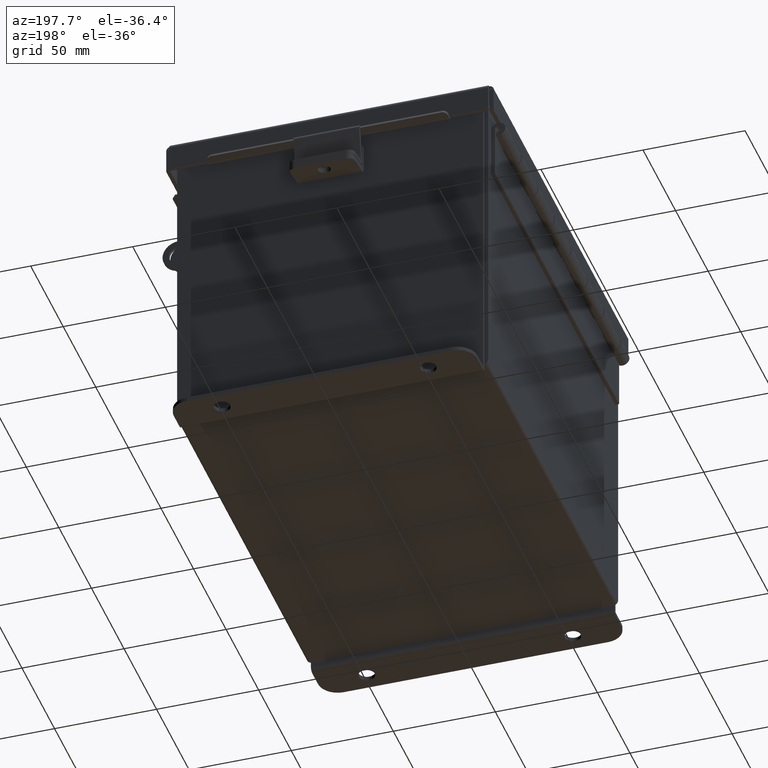
[diagram: clean part render]
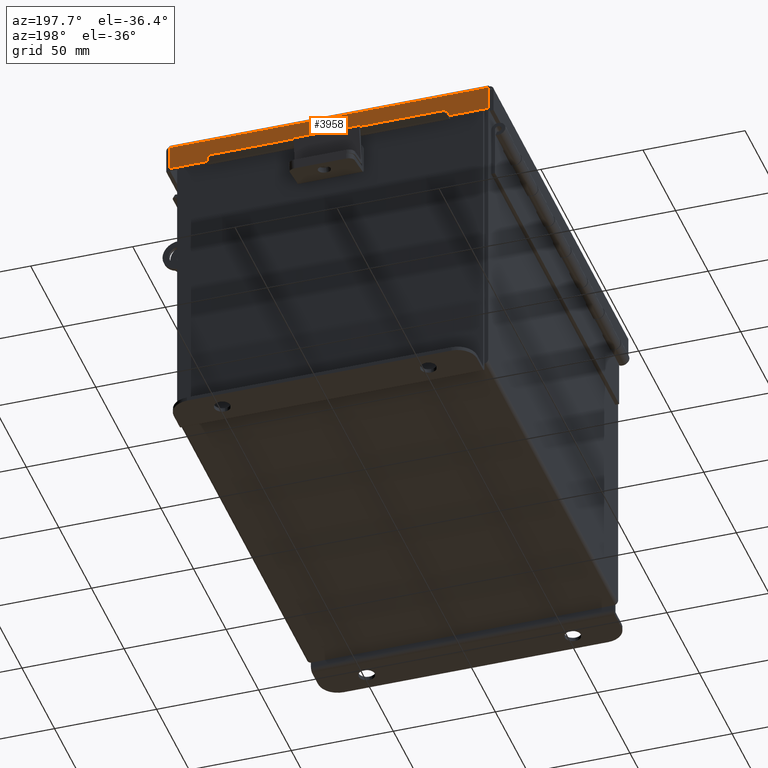
[diagram: same view with one face highlighted and labeled with its STEP entity id]
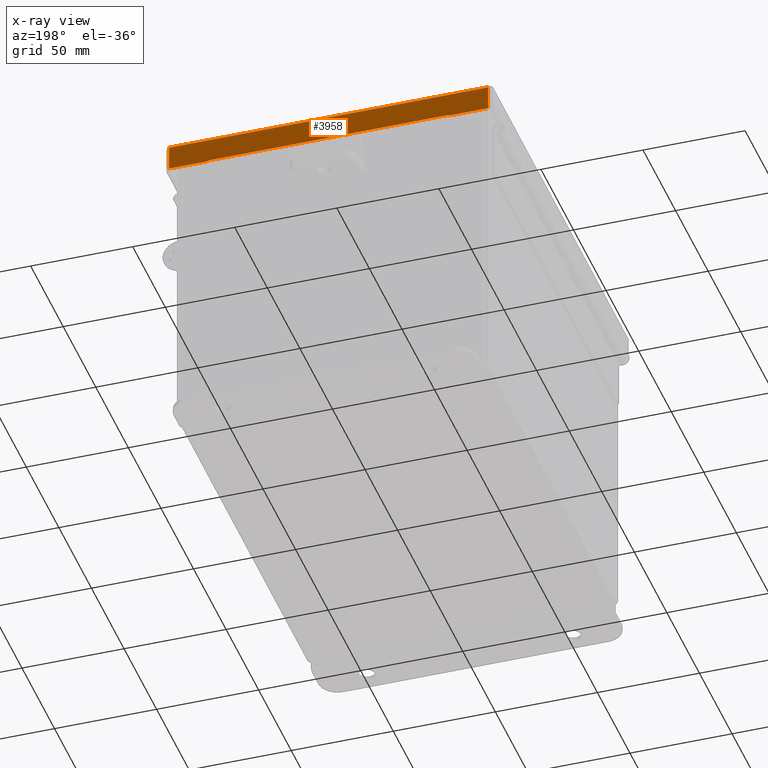
[diagram: x-ray of the same camera — body ghosted, the highlighted face saturated]
A machine part, auxiliary view. The second image highlights one B-rep face of the part: STEP entity #3958.
The next image is the same camera in x-ray: the body ghosted, the highlighted face saturated — about 0% of this face is hidden behind the body in this view.
In plain terms, the highlighted planar face has unit normal (-0, -1, -0).
Its self-contained STEP definition (entity closure, byte-faithful):
#206 = VECTOR ( 'NONE', #11022, 39.37007874015748100 ) ;
#279 = DIRECTION ( 'NONE',  ( 1.000000000000000000, -3.639204975723964700E-032, 1.189815042988946700E-046 ) ) ;
#397 = ORIENTED_EDGE ( 'NONE', *, *, #2754, .F. ) ;
#1220 = ORIENTED_EDGE ( 'NONE', *, *, #1784, .F. ) ;
#1262 = ORIENTED_EDGE ( 'NONE', *, *, #8587, .F. ) ;
#1288 = VERTEX_POINT ( 'NONE', #3587 ) ;
#1474 = VERTEX_POINT ( 'NONE', #7373 ) ;
#1592 = ORIENTED_EDGE ( 'NONE', *, *, #3619, .T. ) ;
#1597 = LINE ( 'NONE', #4617, #13838 ) ;
#1655 = CARTESIAN_POINT ( 'NONE',  ( 3.074478932188136500, 4.156250000000001800, -2.512649847650985800E-016 ) ) ;
#1690 = PLANE ( 'NONE',  #13809 ) ;
#1784 = EDGE_CURVE ( 'NONE', #6330, #1474, #9687, .T. ) ;
#2055 = EDGE_CURVE ( 'NONE', #6949, #1288, #6353, .T. ) ;
#2433 = CARTESIAN_POINT ( 'NONE',  ( 3.074478932188136100, 4.156250000000001800, 0.01299999999999985900 ) ) ;
#2536 = DIRECTION ( 'NONE',  ( 1.000000000000000000, 0.0000000000000000000, 1.081919997490797900E-017 ) ) ;
#2621 = CARTESIAN_POINT ( 'NONE',  ( -3.074478932188133800, 4.156250000000001800, 0.01299999999999986400 ) ) ;
#2706 = EDGE_CURVE ( 'NONE', #10746, #6949, #1597, .T. ) ;
#2741 = VERTEX_POINT ( 'NONE', #4564 ) ;
#2754 = EDGE_CURVE ( 'NONE', #12908, #6330, #10676, .T. ) ;
#2760 = EDGE_CURVE ( 'NONE', #3087, #2741, #9939, .T. ) ;
#3011 = VECTOR ( 'NONE', #5192, 39.37007874015748100 ) ;
#3087 = VERTEX_POINT ( 'NONE', #7235 ) ;
#3101 = DIRECTION ( 'NONE',  ( 0.0000000000000000000, -3.363654414526077700E-015, -1.000000000000000000 ) ) ;
#3155 = CARTESIAN_POINT ( 'NONE',  ( -5.272196147772658800E-018, 4.156250000000003600, 0.4872999999999997900 ) ) ;
#3383 = LINE ( 'NONE', #8624, #206 ) ;
#3526 = ORIENTED_EDGE ( 'NONE', *, *, #2760, .T. ) ;
#3539 = ORIENTED_EDGE ( 'NONE', *, *, #2055, .F. ) ;
#3587 = CARTESIAN_POINT ( 'NONE',  ( -2.324478932188134300, 4.156250000000003600, 0.4717115427318796000 ) ) ;
#3619 = EDGE_CURVE ( 'NONE', #12908, #3087, #5465, .T. ) ;
#3958 = ADVANCED_FACE ( 'NONE', ( #6918 ), #1690, .F. ) ;
#4201 = LINE ( 'NONE', #3155, #10884 ) ;
#4564 = CARTESIAN_POINT ( 'NONE',  ( -2.324478932188134300, 4.156250000000003600, 0.4872999999999997900 ) ) ;
#4617 = CARTESIAN_POINT ( 'NONE',  ( 2.324478932188136500, 4.156250000000004400, 0.4872999999999996200 ) ) ;
#4721 = CARTESIAN_POINT ( 'NONE',  ( 2.324478932188136100, 4.156250000000003600, 0.4717115427318796000 ) ) ;
#4758 = VECTOR ( 'NONE', #279, 39.37007874015748100 ) ;
#5192 = DIRECTION ( 'NONE',  ( -0.0000000000000000000, 3.363654414526077700E-015, 1.000000000000000000 ) ) ;
#5465 = LINE ( 'NONE', #9411, #14547 ) ;
#5536 = CARTESIAN_POINT ( 'NONE',  ( 2.324478932188136100, 4.156250000000004400, 0.4717115427318796000 ) ) ;
#5540 = CARTESIAN_POINT ( 'NONE',  ( 2.324478932188136500, 4.156250000000003600, 0.4872999999999997900 ) ) ;
#5805 = DIRECTION ( 'NONE',  ( -1.752481305030209900E-014, 0.0000000000000000000, -1.000000000000000000 ) ) ;
#6330 = VERTEX_POINT ( 'NONE', #2433 ) ;
#6353 = LINE ( 'NONE', #5536, #9117 ) ;
#6784 = VECTOR ( 'NONE', #2536, 39.37007874015748100 ) ;
#6918 = FACE_OUTER_BOUND ( 'NONE', #7133, .T. ) ;
#6949 = VERTEX_POINT ( 'NONE', #4721 ) ;
#6985 = ORIENTED_EDGE ( 'NONE', *, *, #2706, .F. ) ;
#7133 = EDGE_LOOP ( 'NONE', ( #6985, #14101, #1220, #397, #1592, #3526, #1262, #3539 ) ) ;
#7235 = CARTESIAN_POINT ( 'NONE',  ( -3.074478932188133800, 4.156250000000003600, 0.4872999999999997300 ) ) ;
#7373 = CARTESIAN_POINT ( 'NONE',  ( 3.074478932188136500, 4.156250000000003600, 0.4872999999999997900 ) ) ;
#7493 = CARTESIAN_POINT ( 'NONE',  ( -5.272196147772658800E-018, 4.156250000000003600, 0.4872999999999997900 ) ) ;
#8246 = DIRECTION ( 'NONE',  ( 0.0000000000000000000, 3.363654414526077700E-015, 1.000000000000000000 ) ) ;
#8587 = EDGE_CURVE ( 'NONE', #1288, #2741, #3383, .T. ) ;
#8624 = CARTESIAN_POINT ( 'NONE',  ( -2.324478932188134300, 4.156250000000004400, 0.4717115427318796000 ) ) ;
#8772 = CARTESIAN_POINT ( 'NONE',  ( 1.512544568035273500E-031, 4.156250000000001800, -1.424100231638560100E-014 ) ) ;
#9117 = VECTOR ( 'NONE', #11325, 39.37007874015748100 ) ;
#9411 = CARTESIAN_POINT ( 'NONE',  ( -3.074478932188133800, 4.156250000000001800, -1.424100231638560100E-014 ) ) ;
#9687 = LINE ( 'NONE', #1655, #3011 ) ;
#9939 = LINE ( 'NONE', #7493, #6784 ) ;
#10257 = DIRECTION ( 'NONE',  ( 1.000000000000000000, 0.0000000000000000000, 1.081919997490797900E-017 ) ) ;
#10676 = LINE ( 'NONE', #12411, #4758 ) ;
#10740 = EDGE_CURVE ( 'NONE', #10746, #1474, #4201, .T. ) ;
#10746 = VERTEX_POINT ( 'NONE', #5540 ) ;
#10884 = VECTOR ( 'NONE', #10257, 39.37007874015748100 ) ;
#11022 = DIRECTION ( 'NONE',  ( 0.0000000000000000000, -3.504962610060404700E-014, 1.000000000000000000 ) ) ;
#11325 = DIRECTION ( 'NONE',  ( -1.000000000000000000, -0.0000000000000000000, -0.0000000000000000000 ) ) ;
#12411 = CARTESIAN_POINT ( 'NONE',  ( 3.156250000000000000, 4.156250000000001800, 0.01299999999999986400 ) ) ;
#12908 = VERTEX_POINT ( 'NONE', #2621 ) ;
#13673 = DIRECTION ( 'NONE',  ( -3.639204975723964700E-032, -1.000000000000000000, 3.363654414526077700E-015 ) ) ;
#13809 = AXIS2_PLACEMENT_3D ( 'NONE', #8772, #13673, #3101 ) ;
#13838 = VECTOR ( 'NONE', #5805, 39.37007874015748100 ) ;
#14101 = ORIENTED_EDGE ( 'NONE', *, *, #10740, .T. ) ;
#14547 = VECTOR ( 'NONE', #8246, 39.37007874015748100 ) ;